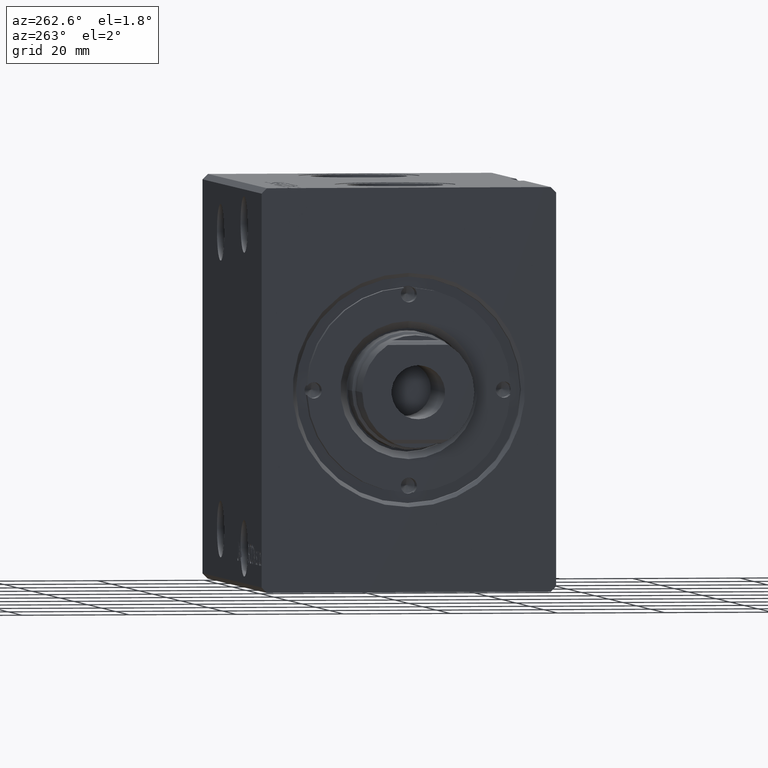
[diagram: clean part render]
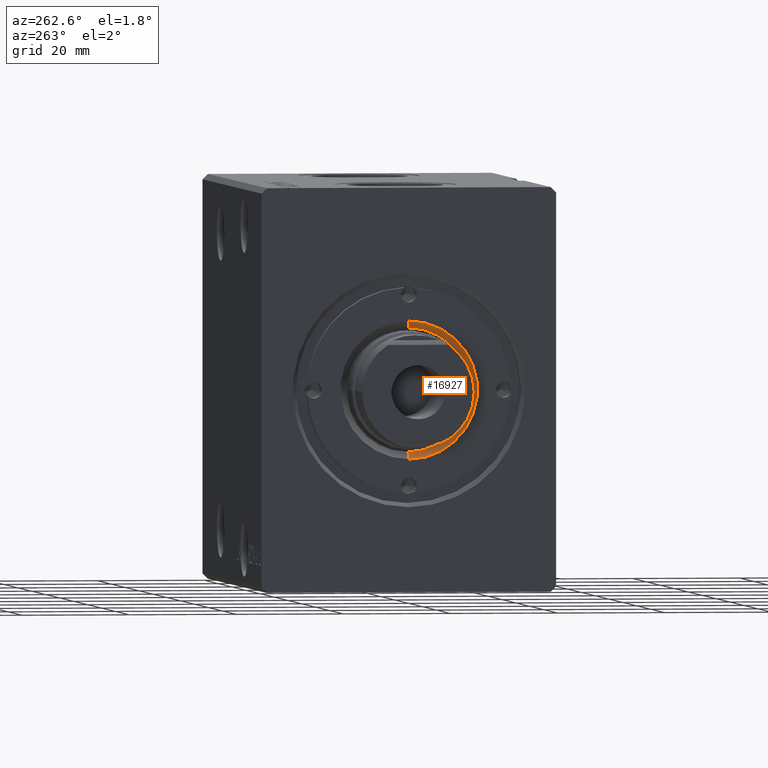
[diagram: same view with one face highlighted and labeled with its STEP entity id]
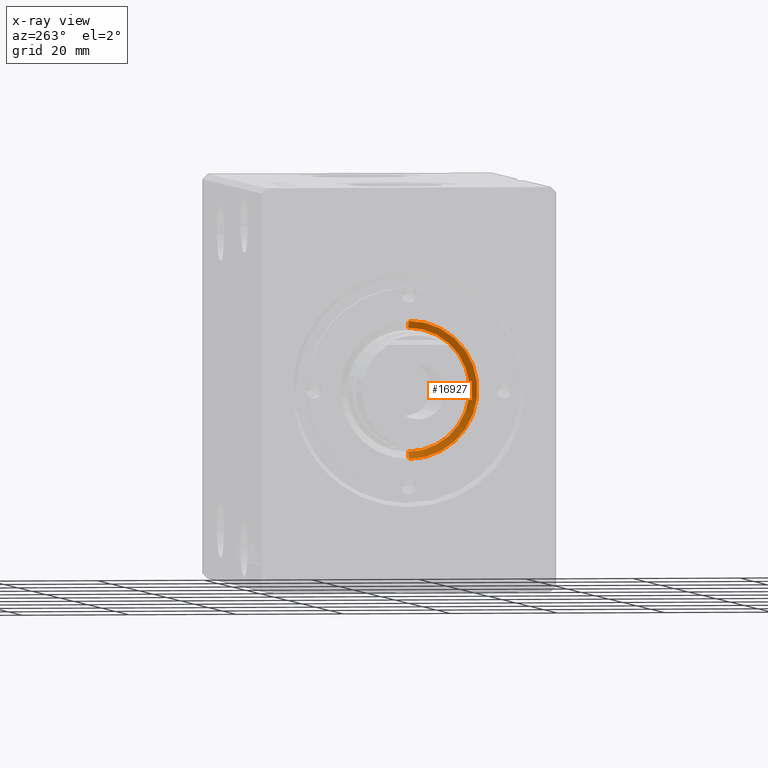
[diagram: x-ray of the same camera — body ghosted, the highlighted face saturated]
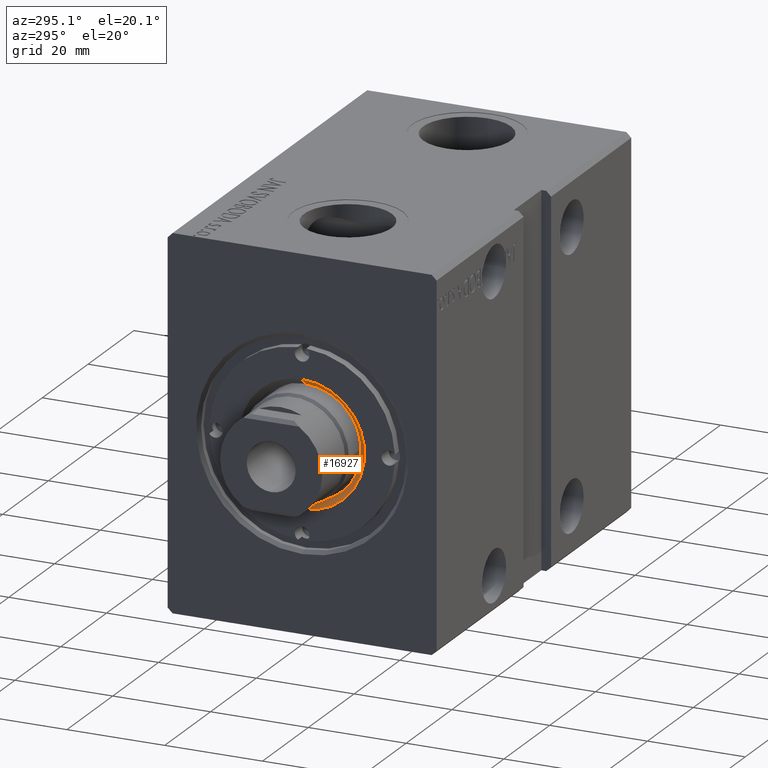
[diagram: same view with one face highlighted and labeled with its STEP entity id]
A machine part, auxiliary view. The second image highlights one B-rep face of the part: STEP entity #16927.
The next image is the same camera in x-ray: the body ghosted, the highlighted face saturated — about 0% of this face is hidden behind the body in this view.
A second angle (auxiliary view) of the same face is appended — the face is thin or edge-on in the first view.
In plain terms, the highlighted conical surface has half-angle 45 deg.
Its self-contained STEP definition (entity closure, byte-faithful):
#812 = DIRECTION ( 'NONE',  ( 1.000000000000000000, 0.000000000000000000, 0.000000000000000000 ) ) ;
#2526 = AXIS2_PLACEMENT_3D ( 'NONE', #20572, #20181, #37085 ) ;
#3470 = DIRECTION ( 'NONE',  ( 0.000000000000000000, 0.000000000000000000, 1.000000000000000000 ) ) ;
#3506 = AXIS2_PLACEMENT_3D ( 'NONE', #10858, #20455, #4923 ) ;
#4211 = CARTESIAN_POINT ( 'NONE',  ( 11.50000000000000000, 0.000000000000000000, 10.50000000000003908 ) ) ;
#4352 = EDGE_CURVE ( 'NONE', #24092, #35404, #35811, .T. ) ;
#4923 = DIRECTION ( 'NONE',  ( 1.000000000000000000, 0.000000000000000000, 0.000000000000000000 ) ) ;
#6389 = VERTEX_POINT ( 'NONE', #4211 ) ;
#6494 = ORIENTED_EDGE ( 'NONE', *, *, #7893, .F. ) ;
#6942 = CARTESIAN_POINT ( 'NONE',  ( 0.000000000000000000, 0.000000000000000000, 10.00000000000000000 ) ) ;
#7893 = EDGE_CURVE ( 'NONE', #21288, #6389, #12644, .T. ) ;
#7905 = EDGE_CURVE ( 'NONE', #21288, #35404, #29466, .T. ) ;
#8107 = CONICAL_SURFACE ( 'NONE', #16615, 10.99999999999995559, 0.7853981633974533860 ) ;
#10858 = CARTESIAN_POINT ( 'NONE',  ( 0.000000000000000000, 0.000000000000000000, 10.50000000000003908 ) ) ;
#11264 = DIRECTION ( 'NONE',  ( -0.7071067811865512365, 8.659560562354979697E-17, 0.7071067811865439090 ) ) ;
#11798 = CARTESIAN_POINT ( 'NONE',  ( -12.79999999999997407, 1.567547902908609029E-15, 11.79999999999999893 ) ) ;
#12644 = CIRCLE ( 'NONE', #3506, 11.50000000000000000 ) ;
#13533 = CARTESIAN_POINT ( 'NONE',  ( -11.50000000000000000, 1.408343819019456176E-15, 10.50000000000003908 ) ) ;
#14428 = CARTESIAN_POINT ( 'NONE',  ( 12.79999999999997407, 0.000000000000000000, 11.79999999999999893 ) ) ;
#16615 = AXIS2_PLACEMENT_3D ( 'NONE', #6942, #3470, #812 ) ;
#16725 = ORIENTED_EDGE ( 'NONE', *, *, #4352, .F. ) ;
#16927 = ADVANCED_FACE ( 'NONE', ( #19006 ), #8107, .F. ) ;
#19006 = FACE_OUTER_BOUND ( 'NONE', #36466, .T. ) ;
#19436 = VECTOR ( 'NONE', #34310, 1000.000000000000000 ) ;
#20181 = DIRECTION ( 'NONE',  ( -0.000000000000000000, -0.000000000000000000, -1.000000000000000000 ) ) ;
#20455 = DIRECTION ( 'NONE',  ( 0.000000000000000000, 0.000000000000000000, 1.000000000000000000 ) ) ;
#20572 = CARTESIAN_POINT ( 'NONE',  ( 0.000000000000000000, 0.000000000000000000, 11.79999999999999893 ) ) ;
#21288 = VERTEX_POINT ( 'NONE', #13533 ) ;
#22549 = ORIENTED_EDGE ( 'NONE', *, *, #30030, .F. ) ;
#24092 = VERTEX_POINT ( 'NONE', #14428 ) ;
#29466 = LINE ( 'NONE', #39070, #35498 ) ;
#30030 = EDGE_CURVE ( 'NONE', #6389, #24092, #31862, .T. ) ;
#31862 = LINE ( 'NONE', #37804, #19436 ) ;
#34310 = DIRECTION ( 'NONE',  ( 0.7071067811865512365, 0.000000000000000000, 0.7071067811865439090 ) ) ;
#35404 = VERTEX_POINT ( 'NONE', #11798 ) ;
#35498 = VECTOR ( 'NONE', #11264, 1000.000000000000000 ) ;
#35811 = CIRCLE ( 'NONE', #2526, 12.79999999999997407 ) ;
#36166 = ORIENTED_EDGE ( 'NONE', *, *, #7905, .T. ) ;
#36466 = EDGE_LOOP ( 'NONE', ( #6494, #36166, #16725, #22549 ) ) ;
#37085 = DIRECTION ( 'NONE',  ( 1.000000000000000000, 0.000000000000000000, 0.000000000000000000 ) ) ;
#37804 = CARTESIAN_POINT ( 'NONE',  ( 10.99999999999995559, 0.000000000000000000, 10.00000000000000000 ) ) ;
#39070 = CARTESIAN_POINT ( 'NONE',  ( -10.99999999999995559, 1.347111479062083277E-15, 10.00000000000000000 ) ) ;